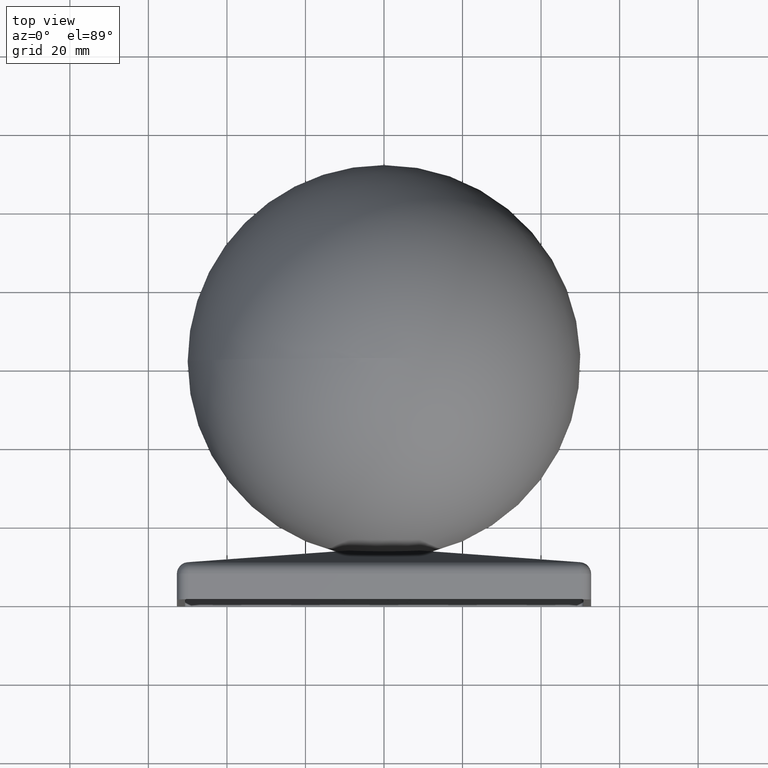
[diagram: clean part render]
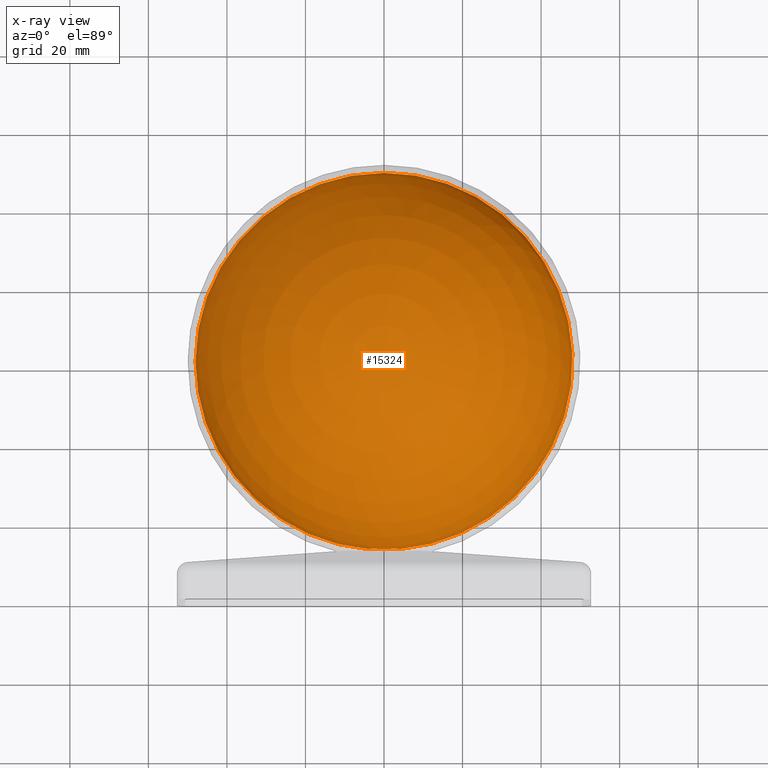
[diagram: x-ray — body ghosted, one internal face saturated and labeled with its STEP entity id]
A machine part, top view, then the same camera in x-ray: the body is ghosted and one INTERNAL B-rep face — a face not visible from any outside direction — is saturated and labeled: STEP entity #15324.
In plain terms, the highlighted spherical surface has radius 48 mm.
Its self-contained STEP definition (entity closure, byte-faithful):
#7 = CARTESIAN_POINT ( 'NONE',  ( 3.109503528687555600, 13.71422945055381200, 3.294754190024073100 ) ) ;
#223 = CARTESIAN_POINT ( 'NONE',  ( 3.294502868280654100, 13.71425218317381900, 3.110133454452185000 ) ) ;
#666 = CARTESIAN_POINT ( 'NONE',  ( -3.166843656118335700, 13.71552996154527200, 3.258802754475045300 ) ) ;
#1218 = CARTESIAN_POINT ( 'NONE',  ( -3.048742543827536600, 13.71203672173083100, 3.318996025344794500 ) ) ;
#1299 = CIRCLE ( 'NONE', #13959, 8.198406549799049300 ) ;
#1839 = DIRECTION ( 'NONE',  ( -2.000277584413958800E-017, -0.9959341263205833100, -0.09008449383804260900 ) ) ;
#2029 = CARTESIAN_POINT ( 'NONE',  ( 3.048742543829742400, 13.71203672173091600, 3.318996025343875700 ) ) ;
#2520 = CIRCLE ( 'NONE', #13860, 48.00000000000000000 ) ;
#2541 = CARTESIAN_POINT ( 'NONE',  ( -3.904556151795234500, 13.65907148416245500, 0.0000000000000000000 ) ) ;
#2593 = CIRCLE ( 'NONE', #16215, 8.198406549799049300 ) ;
#2754 = FACE_OUTER_BOUND ( 'NONE', #4473, .T. ) ;
#3062 = ORIENTED_EDGE ( 'NONE', *, *, #14755, .F. ) ;
#3380 = CARTESIAN_POINT ( 'NONE',  ( 3.904556151795234500, 13.65907148416245500, 4.781702193387140700E-016 ) ) ;
#3454 = CARTESIAN_POINT ( 'NONE',  ( -2.683573855522896500E-015, 109.5000000000000000, 0.0000000000000000000 ) ) ;
#3968 = EDGE_CURVE ( 'NONE', #17034, #16117, #5386, .T. ) ;
#4251 = CARTESIAN_POINT ( 'NONE',  ( 3.166312304721270000, 13.71552176385009000, 3.259198840011885000 ) ) ;
#4355 = ORIENTED_EDGE ( 'NONE', *, *, #3968, .T. ) ;
#4473 = EDGE_LOOP ( 'NONE', ( #15173, #11237, #4518, #16400, #15392, #3062, #4355 ) ) ;
#4518 = ORIENTED_EDGE ( 'NONE', *, *, #11697, .F. ) ;
#4774 = CARTESIAN_POINT ( 'NONE',  ( -3.318996025343873100, 13.71203672173091800, 3.048742543829743300 ) ) ;
#5212 = DIRECTION ( 'NONE',  ( -1.000000000000000000, 0.0000000000000000000, 0.0000000000000000000 ) ) ;
#5386 = CIRCLE ( 'NONE', #13176, 48.00000000000000000 ) ;
#5586 = CARTESIAN_POINT ( 'NONE',  ( 4.260516712599830700, 14.39762078847959400, 0.0000000000000000000 ) ) ;
#5688 = B_SPLINE_CURVE_WITH_KNOTS ( 'NONE', 3,
 ( #6943, #7, #4251, #8097, #223, #6885 ),
 .UNSPECIFIED., .F., .F.,
 ( 4, 2, 4 ),
 ( 0.003392180755970096300, 0.003587366674424366900, 0.003782552592878637900 ),
 .UNSPECIFIED. ) ;
#5874 = DIRECTION ( 'NONE',  ( -1.224646799147353200E-016, 6.520694707225454100E-034, 1.000000000000000000 ) ) ;
#6106 = CARTESIAN_POINT ( 'NONE',  ( -3.318996025343873100, 13.71203672173091800, 3.048742543829743300 ) ) ;
#6885 = CARTESIAN_POINT ( 'NONE',  ( 3.318996025343868200, 13.71203672173091800, 3.048742543829754400 ) ) ;
#6943 = CARTESIAN_POINT ( 'NONE',  ( 3.048742543829742400, 13.71203672173091600, 3.318996025343875700 ) ) ;
#7366 = CARTESIAN_POINT ( 'NONE',  ( -3.110133454450469100, 13.71425218317377700, 3.294502868281655500 ) ) ;
#7735 = VERTEX_POINT ( 'NONE', #6106 ) ;
#8005 = B_SPLINE_CURVE_WITH_KNOTS ( 'NONE', 3,
 ( #4774, #9998, #8655, #666, #7366, #11247 ),
 .UNSPECIFIED., .F., .F.,
 ( 4, 2, 4 ),
 ( 0.003392180755970095000, 0.003587366674425545200, 0.003782552592880995400 ),
 .UNSPECIFIED. ) ;
#8089 = VERTEX_POINT ( 'NONE', #3380 ) ;
#8097 = CARTESIAN_POINT ( 'NONE',  ( 3.258802754474051000, 13.71552996154529000, 3.166843656119605800 ) ) ;
#8655 = CARTESIAN_POINT ( 'NONE',  ( -3.259198840011442700, 13.71552176385010700, 3.166312304721930800 ) ) ;
#9350 = DIRECTION ( 'NONE',  ( -0.09008449383804260900, 0.9959341263205833100, 0.0000000000000000000 ) ) ;
#9369 = DIRECTION ( 'NONE',  ( -1.000000000000000000, 0.0000000000000000000, 0.0000000000000000000 ) ) ;
#9546 = CARTESIAN_POINT ( 'NONE',  ( -4.260516712599830700, 14.39762078847959400, 0.0000000000000000000 ) ) ;
#9664 = DIRECTION ( 'NONE',  ( 0.9959341263205833100, -0.09008449383804262300, 0.0000000000000000000 ) ) ;
#9998 = CARTESIAN_POINT ( 'NONE',  ( -3.294754190023957600, 13.71422945055382000, 3.109503528687937100 ) ) ;
#10137 = AXIS2_PLACEMENT_3D ( 'NONE', #9546, #15001, #9664 ) ;
#11116 = CARTESIAN_POINT ( 'NONE',  ( 0.0000000000000000000, 61.50000000000000000, 0.0000000000000000000 ) ) ;
#11237 = ORIENTED_EDGE ( 'NONE', *, *, #14417, .T. ) ;
#11247 = CARTESIAN_POINT ( 'NONE',  ( -3.048742543827536600, 13.71203672173083100, 3.318996025344794500 ) ) ;
#11401 = CARTESIAN_POINT ( 'NONE',  ( 3.318996025343868200, 13.71203672173091800, 3.048742543829754400 ) ) ;
#11697 = EDGE_CURVE ( 'NONE', #15565, #13773, #5688, .T. ) ;
#12021 = CARTESIAN_POINT ( 'NONE',  ( 0.0000000000000000000, 61.50000000000000000, 0.0000000000000000000 ) ) ;
#12444 = DIRECTION ( 'NONE',  ( 1.000000000000000000, 0.0000000000000000000, 1.224646799147353200E-016 ) ) ;
#12600 = AXIS2_PLACEMENT_3D ( 'NONE', #12021, #16075, #9369 ) ;
#12769 = EDGE_CURVE ( 'NONE', #15565, #14319, #2593, .T. ) ;
#12787 = CARTESIAN_POINT ( 'NONE',  ( 0.0000000000000000000, 61.50000000000000000, 0.0000000000000000000 ) ) ;
#13176 = AXIS2_PLACEMENT_3D ( 'NONE', #12787, #14151, #5212 ) ;
#13352 = EDGE_CURVE ( 'NONE', #7735, #14319, #8005, .T. ) ;
#13773 = VERTEX_POINT ( 'NONE', #11401 ) ;
#13791 = DIRECTION ( 'NONE',  ( 0.0000000000000000000, 0.09008449383804262300, -0.9959341263205833100 ) ) ;
#13860 = AXIS2_PLACEMENT_3D ( 'NONE', #11116, #5874, #12444 ) ;
#13959 = AXIS2_PLACEMENT_3D ( 'NONE', #5586, #9350, #14814 ) ;
#14024 = SPHERICAL_SURFACE ( 'NONE', #12600, 48.00000000000000000 ) ;
#14151 = DIRECTION ( 'NONE',  ( -0.0000000000000000000, 0.0000000000000000000, -1.000000000000000000 ) ) ;
#14319 = VERTEX_POINT ( 'NONE', #1218 ) ;
#14417 = EDGE_CURVE ( 'NONE', #8089, #13773, #15733, .T. ) ;
#14755 = EDGE_CURVE ( 'NONE', #17034, #7735, #1299, .T. ) ;
#14814 = DIRECTION ( 'NONE',  ( -0.9959341263205833100, -0.09008449383804262300, 0.0000000000000000000 ) ) ;
#15001 = DIRECTION ( 'NONE',  ( -0.09008449383804260900, -0.9959341263205833100, -0.0000000000000000000 ) ) ;
#15173 = ORIENTED_EDGE ( 'NONE', *, *, #16868, .F. ) ;
#15324 = ADVANCED_FACE ( 'NONE', ( #2754 ), #14024, .F. ) ;
#15392 = ORIENTED_EDGE ( 'NONE', *, *, #13352, .F. ) ;
#15565 = VERTEX_POINT ( 'NONE', #2029 ) ;
#15733 = CIRCLE ( 'NONE', #10137, 8.198406549799049300 ) ;
#16075 = DIRECTION ( 'NONE',  ( 0.0000000000000000000, 0.0000000000000000000, 1.000000000000000000 ) ) ;
#16117 = VERTEX_POINT ( 'NONE', #3454 ) ;
#16215 = AXIS2_PLACEMENT_3D ( 'NONE', #16466, #1839, #13791 ) ;
#16400 = ORIENTED_EDGE ( 'NONE', *, *, #12769, .T. ) ;
#16466 = CARTESIAN_POINT ( 'NONE',  ( -9.460247502257225600E-016, 14.39762078847959400, -4.260516712599830700 ) ) ;
#16868 = EDGE_CURVE ( 'NONE', #8089, #16117, #2520, .T. ) ;
#17034 = VERTEX_POINT ( 'NONE', #2541 ) ;